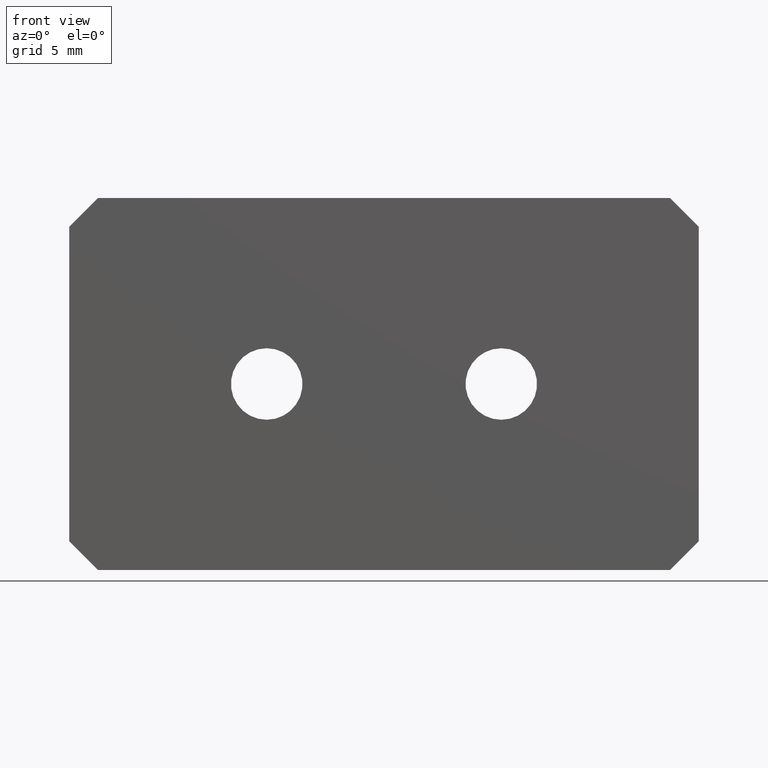
[diagram: clean part render]
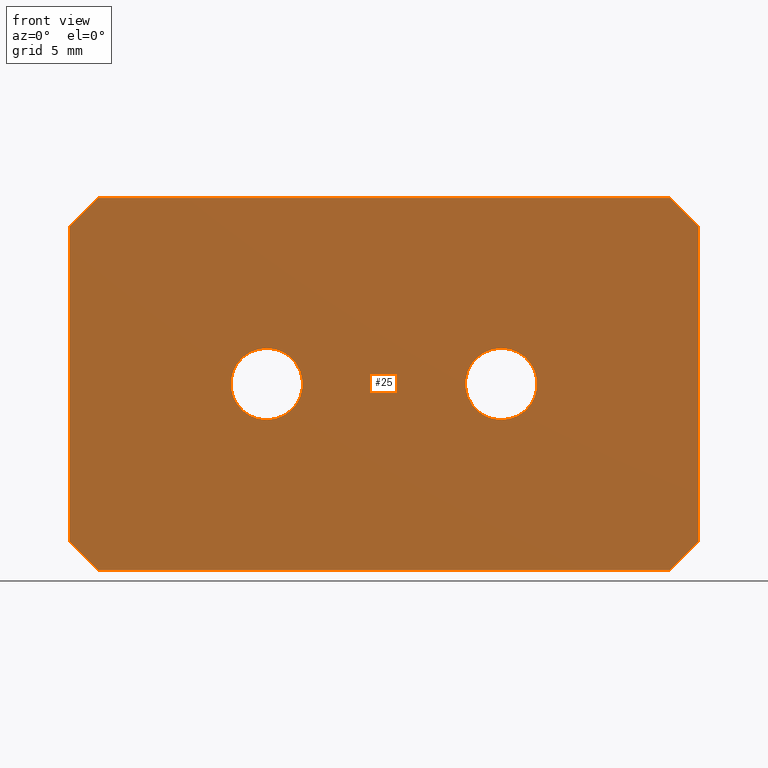
[diagram: same view with one face highlighted and labeled with its STEP entity id]
A machine part, front view. The second image highlights one B-rep face of the part: STEP entity #25.
In plain terms, the highlighted planar face has unit normal (0, 1, 0).
Its self-contained STEP definition (entity closure, byte-faithful):
#3 = EDGE_CURVE ( 'NONE', #5, #32, #215, .T. ) ;
#5 = VERTEX_POINT ( 'NONE', #210 ) ;
#8 = ORIENTED_EDGE ( 'NONE', *, *, #3, .F. ) ;
#10 = EDGE_LOOP ( 'NONE', ( #26, #27 ) ) ;
#11 = VERTEX_POINT ( 'NONE', #204 ) ;
#25 = ADVANCED_FACE ( 'NONE', ( #154, #148, #147 ), #146, .F. ) ;
#26 = ORIENTED_EDGE ( 'NONE', *, *, #41, .T. ) ;
#27 = ORIENTED_EDGE ( 'NONE', *, *, #28, .T. ) ;
#28 = EDGE_CURVE ( 'NONE', #11, #42, #140, .T. ) ;
#29 = EDGE_LOOP ( 'NONE', ( #8, #33, #71, #74, #77, #80, #83, #87 ) ) ;
#32 = VERTEX_POINT ( 'NONE', #172 ) ;
#33 = ORIENTED_EDGE ( 'NONE', *, *, #34, .F. ) ;
#34 = EDGE_CURVE ( 'NONE', #35, #5, #171, .T. ) ;
#35 = VERTEX_POINT ( 'NONE', #167 ) ;
#41 = EDGE_CURVE ( 'NONE', #42, #11, #249, .T. ) ;
#42 = VERTEX_POINT ( 'NONE', #271 ) ;
#45 = VERTEX_POINT ( 'NONE', #268 ) ;
#61 = EDGE_CURVE ( 'NONE', #219, #45, #286, .T. ) ;
#71 = ORIENTED_EDGE ( 'NONE', *, *, #72, .F. ) ;
#72 = EDGE_CURVE ( 'NONE', #73, #35, #259, .T. ) ;
#73 = VERTEX_POINT ( 'NONE', #255 ) ;
#74 = ORIENTED_EDGE ( 'NONE', *, *, #75, .F. ) ;
#75 = EDGE_CURVE ( 'NONE', #76, #73, #253, .T. ) ;
#76 = VERTEX_POINT ( 'NONE', #299 ) ;
#77 = ORIENTED_EDGE ( 'NONE', *, *, #78, .F. ) ;
#78 = EDGE_CURVE ( 'NONE', #79, #76, #302, .T. ) ;
#79 = VERTEX_POINT ( 'NONE', #287 ) ;
#80 = ORIENTED_EDGE ( 'NONE', *, *, #81, .F. ) ;
#81 = EDGE_CURVE ( 'NONE', #82, #79, #300, .T. ) ;
#82 = VERTEX_POINT ( 'NONE', #296 ) ;
#83 = ORIENTED_EDGE ( 'NONE', *, *, #84, .F. ) ;
#84 = EDGE_CURVE ( 'NONE', #85, #82, #295, .T. ) ;
#85 = VERTEX_POINT ( 'NONE', #288 ) ;
#86 = EDGE_LOOP ( 'NONE', ( #89, #90 ) ) ;
#87 = ORIENTED_EDGE ( 'NONE', *, *, #88, .F. ) ;
#88 = EDGE_CURVE ( 'NONE', #32, #85, #254, .T. ) ;
#89 = ORIENTED_EDGE ( 'NONE', *, *, #61, .T. ) ;
#90 = ORIENTED_EDGE ( 'NONE', *, *, #91, .T. ) ;
#91 = EDGE_CURVE ( 'NONE', #45, #219, #309, .T. ) ;
#139 = AXIS2_PLACEMENT_3D ( 'NONE', #178, #177, #176 ) ;
#140 = CIRCLE ( 'NONE', #139, 2.500000000000000400 ) ;
#142 = DIRECTION ( 'NONE',  ( 0.0000000000000000000, -0.0000000000000000000, 1.000000000000000000 ) ) ;
#143 = DIRECTION ( 'NONE',  ( 0.0000000000000000000, 1.000000000000000000, 0.0000000000000000000 ) ) ;
#144 = CARTESIAN_POINT ( 'NONE',  ( 3.469446951953614200E-015, 0.0000000000000000000, -32.99999999999994300 ) ) ;
#145 = AXIS2_PLACEMENT_3D ( 'NONE', #144, #143, #142 ) ;
#146 = PLANE ( 'NONE',  #145 ) ;
#147 = FACE_BOUND ( 'NONE', #86, .T. ) ;
#148 = FACE_OUTER_BOUND ( 'NONE', #29, .T. ) ;
#154 = FACE_BOUND ( 'NONE', #10, .T. ) ;
#161 = CARTESIAN_POINT ( 'NONE',  ( -8.199999999999997500, 0.0000000000000000000, 1.029992063861229200E-015 ) ) ;
#167 = CARTESIAN_POINT ( 'NONE',  ( 19.99999999999999600, 0.0000000000000000000, -13.00000000000000700 ) ) ;
#168 = DIRECTION ( 'NONE',  ( -1.000000000000000000, -0.0000000000000000000, 1.301042606982605600E-016 ) ) ;
#169 = VECTOR ( 'NONE', #168, 1000.000000000000000 ) ;
#170 = CARTESIAN_POINT ( 'NONE',  ( -19.99999999999999600, 0.0000000000000000000, -13.00000000000000200 ) ) ;
#171 = LINE ( 'NONE', #170, #169 ) ;
#172 = CARTESIAN_POINT ( 'NONE',  ( -22.00000000000000000, 0.0000000000000000000, -11.00000000000000500 ) ) ;
#176 = DIRECTION ( 'NONE',  ( 0.0000000000000000000, 0.0000000000000000000, 1.000000000000000000 ) ) ;
#177 = DIRECTION ( 'NONE',  ( 0.0000000000000000000, 1.000000000000000000, 0.0000000000000000000 ) ) ;
#178 = CARTESIAN_POINT ( 'NONE',  ( -8.199999999999997500, 0.0000000000000000000, 1.029992063861229200E-015 ) ) ;
#204 = CARTESIAN_POINT ( 'NONE',  ( -8.199999999999997500, 0.0000000000000000000, 2.500000000000001300 ) ) ;
#210 = CARTESIAN_POINT ( 'NONE',  ( -19.99999999999999600, 0.0000000000000000000, -13.00000000000000200 ) ) ;
#212 = DIRECTION ( 'NONE',  ( -0.7071067811865484600, -0.0000000000000000000, 0.7071067811865465700 ) ) ;
#213 = VECTOR ( 'NONE', #212, 1000.000000000000000 ) ;
#214 = CARTESIAN_POINT ( 'NONE',  ( -22.00000000000000000, 0.0000000000000000000, -11.00000000000000500 ) ) ;
#215 = LINE ( 'NONE', #214, #213 ) ;
#219 = VERTEX_POINT ( 'NONE', #357 ) ;
#245 = CARTESIAN_POINT ( 'NONE',  ( 22.00000000000000700, 0.0000000000000000000, 11.00000000000000500 ) ) ;
#246 = DIRECTION ( 'NONE',  ( 0.0000000000000000000, 1.000000000000000000, 0.0000000000000000000 ) ) ;
#247 = DIRECTION ( 'NONE',  ( 0.0000000000000000000, 0.0000000000000000000, 1.000000000000000000 ) ) ;
#248 = AXIS2_PLACEMENT_3D ( 'NONE', #161, #246, #247 ) ;
#249 = CIRCLE ( 'NONE', #248, 2.500000000000000400 ) ;
#250 = VECTOR ( 'NONE', #251, 1000.000000000000000 ) ;
#251 = DIRECTION ( 'NONE',  ( -3.154042683594193100E-016, 0.0000000000000000000, -1.000000000000000000 ) ) ;
#253 = LINE ( 'NONE', #245, #250 ) ;
#254 = LINE ( 'NONE', #305, #304 ) ;
#255 = CARTESIAN_POINT ( 'NONE',  ( 22.00000000000000000, 0.0000000000000000000, -11.00000000000001100 ) ) ;
#256 = DIRECTION ( 'NONE',  ( -0.7071067811865484600, 0.0000000000000000000, -0.7071067811865465700 ) ) ;
#257 = VECTOR ( 'NONE', #256, 1000.000000000000000 ) ;
#258 = CARTESIAN_POINT ( 'NONE',  ( 22.00000000000000000, 0.0000000000000000000, -11.00000000000001100 ) ) ;
#259 = LINE ( 'NONE', #258, #257 ) ;
#268 = CARTESIAN_POINT ( 'NONE',  ( 8.200000000000001100, 0.0000000000000000000, 2.499999999999996400 ) ) ;
#271 = CARTESIAN_POINT ( 'NONE',  ( -8.199999999999997500, 0.0000000000000000000, -2.499999999999999600 ) ) ;
#282 = DIRECTION ( 'NONE',  ( 0.0000000000000000000, 0.0000000000000000000, -1.000000000000000000 ) ) ;
#283 = DIRECTION ( 'NONE',  ( -0.0000000000000000000, 1.000000000000000000, -0.0000000000000000000 ) ) ;
#284 = CARTESIAN_POINT ( 'NONE',  ( 8.200000000000001100, 0.0000000000000000000, -2.439454888092385000E-015 ) ) ;
#285 = AXIS2_PLACEMENT_3D ( 'NONE', #284, #283, #282 ) ;
#286 = CIRCLE ( 'NONE', #285, 2.499999999999999100 ) ;
#287 = CARTESIAN_POINT ( 'NONE',  ( 20.00000000000000400, 0.0000000000000000000, 12.99999999999999800 ) ) ;
#288 = CARTESIAN_POINT ( 'NONE',  ( -22.00000000000000000, 0.0000000000000000000, 11.00000000000001100 ) ) ;
#289 = DIRECTION ( 'NONE',  ( 0.7071067811865490200, 0.0000000000000000000, 0.7071067811865460200 ) ) ;
#290 = VECTOR ( 'NONE', #289, 1000.000000000000100 ) ;
#291 = CARTESIAN_POINT ( 'NONE',  ( -22.00000000000000000, 0.0000000000000000000, 11.00000000000001100 ) ) ;
#292 = CARTESIAN_POINT ( 'NONE',  ( -19.99999999999999600, 0.0000000000000000000, 13.00000000000000500 ) ) ;
#293 = DIRECTION ( 'NONE',  ( 0.7071067811865490200, -0.0000000000000000000, -0.7071067811865460200 ) ) ;
#294 = VECTOR ( 'NONE', #293, 1000.000000000000100 ) ;
#295 = LINE ( 'NONE', #291, #290 ) ;
#296 = CARTESIAN_POINT ( 'NONE',  ( -19.99999999999999600, 0.0000000000000000000, 13.00000000000000500 ) ) ;
#297 = DIRECTION ( 'NONE',  ( 1.000000000000000000, 0.0000000000000000000, -1.734723475976807100E-016 ) ) ;
#298 = VECTOR ( 'NONE', #297, 1000.000000000000000 ) ;
#299 = CARTESIAN_POINT ( 'NONE',  ( 22.00000000000000700, 0.0000000000000000000, 11.00000000000000500 ) ) ;
#300 = LINE ( 'NONE', #292, #298 ) ;
#301 = CARTESIAN_POINT ( 'NONE',  ( 22.00000000000000700, 0.0000000000000000000, 11.00000000000000500 ) ) ;
#302 = LINE ( 'NONE', #301, #294 ) ;
#303 = DIRECTION ( 'NONE',  ( -0.0000000000000000000, -0.0000000000000000000, 1.000000000000000000 ) ) ;
#304 = VECTOR ( 'NONE', #303, 1000.000000000000000 ) ;
#305 = CARTESIAN_POINT ( 'NONE',  ( -22.00000000000000000, 0.0000000000000000000, 11.00000000000001100 ) ) ;
#306 = DIRECTION ( 'NONE',  ( 0.0000000000000000000, 0.0000000000000000000, -1.000000000000000000 ) ) ;
#307 = DIRECTION ( 'NONE',  ( -0.0000000000000000000, 1.000000000000000000, -0.0000000000000000000 ) ) ;
#308 = AXIS2_PLACEMENT_3D ( 'NONE', #310, #307, #306 ) ;
#309 = CIRCLE ( 'NONE', #308, 2.499999999999999100 ) ;
#310 = CARTESIAN_POINT ( 'NONE',  ( 8.200000000000001100, 0.0000000000000000000, -2.439454888092385000E-015 ) ) ;
#357 = CARTESIAN_POINT ( 'NONE',  ( 8.200000000000001100, 0.0000000000000000000, -2.500000000000001800 ) ) ;